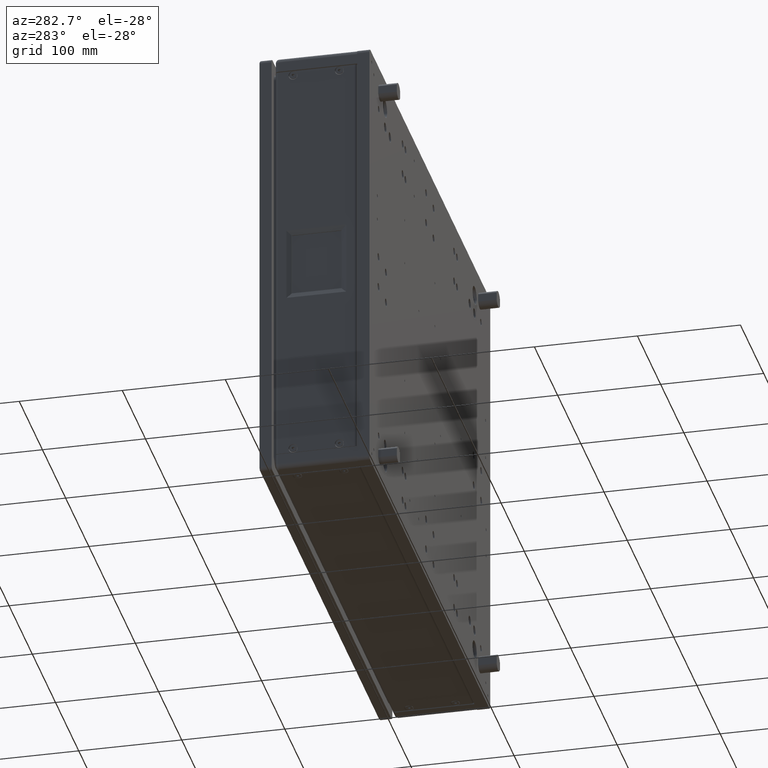
[diagram: clean part render]
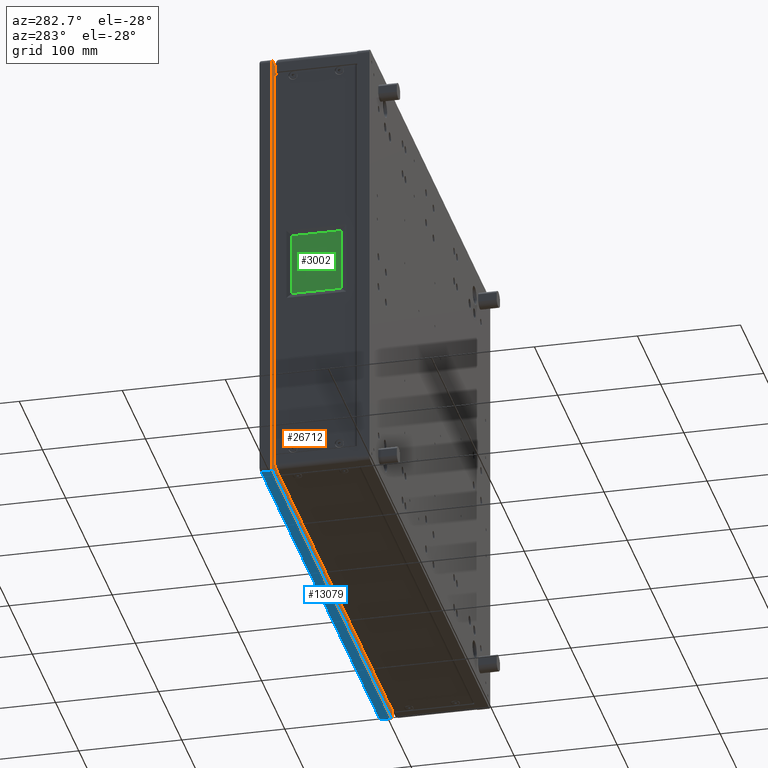
[diagram: same view with three faces highlighted in distinct colors, each labeled with its STEP entity id]
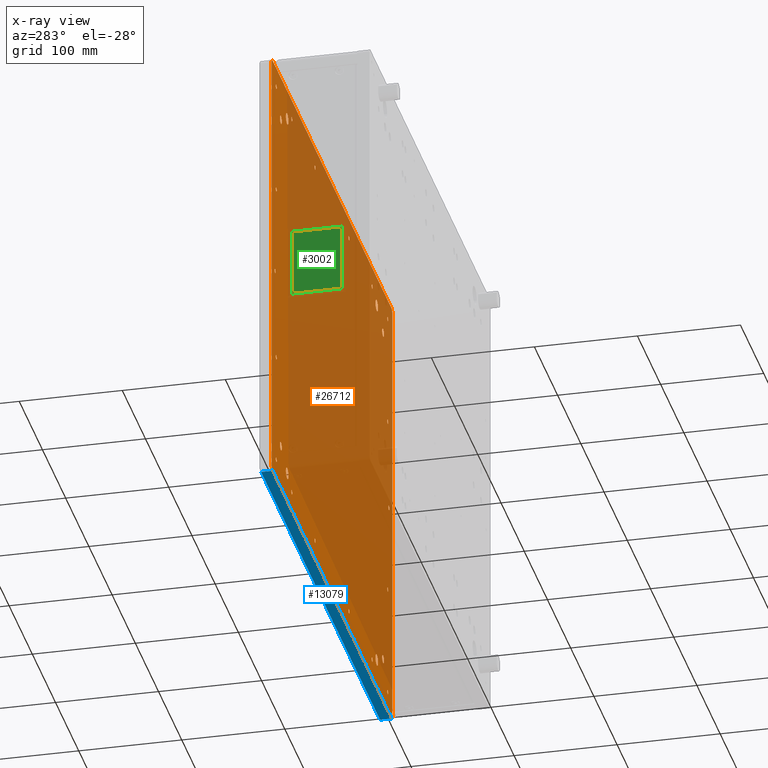
[diagram: x-ray of the same camera — body ghosted, the three highlighted faces saturated]
A machine part, auxiliary view with three faces highlighted in distinct colors.
The next image is the same camera in x-ray (body ghosted, the three faces saturated) — at least one of them is partly hidden behind the body in this view.
Their STEP definitions:

[orange] entity #26712 — the highlighted planar face has unit normal (0, -1, 0).
#168 = EDGE_LOOP ( 'NONE', ( #10743, #9901, #26916, #10120, #3523, #32896, #34332, #19754 ) ) ;
#341 = ORIENTED_EDGE ( 'NONE', *, *, #30311, .T. ) ;
#402 = EDGE_LOOP ( 'NONE', ( #28688 ) ) ;
#425 = CARTESIAN_POINT ( 'NONE',  ( -208.5487244020111177, 101.1371811005063108, 312.9000000000000341 ) ) ;
#665 = FACE_BOUND ( 'NONE', #37853, .T. ) ;
#764 = EDGE_LOOP ( 'NONE', ( #5874 ) ) ;
#797 = CARTESIAN_POINT ( 'NONE',  ( 204.4512755979889675, 101.1371811005064103, 602.8999999999999773 ) ) ;
#848 = FACE_BOUND ( 'NONE', #8120, .T. ) ;
#877 = EDGE_CURVE ( 'NONE', #38837, #31622, #29970, .T. ) ;
#979 = VERTEX_POINT ( 'NONE', #22086 ) ;
#1047 = FACE_BOUND ( 'NONE', #9235, .T. ) ;
#1106 = AXIS2_PLACEMENT_3D ( 'NONE', #12530, #37319, #10545 ) ;
#1227 = VERTEX_POINT ( 'NONE', #26251 ) ;
#1356 = AXIS2_PLACEMENT_3D ( 'NONE', #14320, #2036, #35163 ) ;
#1362 = CARTESIAN_POINT ( 'NONE',  ( 37.45127559798895334, 101.1371811005063819, 712.9000000000000909 ) ) ;
#1440 = VERTEX_POINT ( 'NONE', #11153 ) ;
#1709 = DIRECTION ( 'NONE',  ( -2.376672073132158167E-16, 1.000000000000000000, -8.030019939456232739E-17 ) ) ;
#1999 = CARTESIAN_POINT ( 'NONE',  ( 157.4512755979891665, 101.1371811005064103, 710.4999999999998863 ) ) ;
#2036 = DIRECTION ( 'NONE',  ( -2.376672073132158167E-16, 1.000000000000000000, -8.030019939456232739E-17 ) ) ;
#2159 = EDGE_CURVE ( 'NONE', #34348, #34348, #11267, .T. ) ;
#2203 = CIRCLE ( 'NONE', #26876, 2.099999999999990763 ) ;
#2260 = CARTESIAN_POINT ( 'NONE',  ( 224.4512755979889960, 101.1371811005064103, 493.3565087996968828 ) ) ;
#2636 = EDGE_LOOP ( 'NONE', ( #9509 ) ) ;
#2790 = DIRECTION ( 'NONE',  ( 0.000000000000000000, 0.000000000000000000, 1.000000000000000000 ) ) ;
#2815 = VERTEX_POINT ( 'NONE', #23256 ) ;
#2988 = VERTEX_POINT ( 'NONE', #6080 ) ;
#3041 = AXIS2_PLACEMENT_3D ( 'NONE', #9988, #33786, #27648 ) ;
#3456 = CARTESIAN_POINT ( 'NONE',  ( 184.4512755979888539, 101.1371811005063961, 339.9999999999999432 ) ) ;
#3523 = ORIENTED_EDGE ( 'NONE', *, *, #36328, .T. ) ;
#3822 = DIRECTION ( 'NONE',  ( 0.000000000000000000, 0.000000000000000000, -1.000000000000000000 ) ) ;
#3824 = FACE_BOUND ( 'NONE', #37181, .T. ) ;
#3891 = DIRECTION ( 'NONE',  ( 0.000000000000000000, 0.000000000000000000, -1.000000000000000000 ) ) ;
#4000 = EDGE_LOOP ( 'NONE', ( #18840 ) ) ;
#4064 = CARTESIAN_POINT ( 'NONE',  ( -228.5487244020109188, 101.1371811005063250, 710.5000000000000000 ) ) ;
#4172 = CARTESIAN_POINT ( 'NONE',  ( 204.4512755979889675, 101.1371811005063961, 312.8999999999999773 ) ) ;
#4390 = CARTESIAN_POINT ( 'NONE',  ( -291.5487244020110893, 101.1371811005062824, 294.9999999999999432 ) ) ;
#4622 = EDGE_CURVE ( 'NONE', #22012, #22012, #11488, .T. ) ;
#4698 = EDGE_CURVE ( 'NONE', #24418, #24418, #18450, .T. ) ;
#4911 = EDGE_LOOP ( 'NONE', ( #341 ) ) ;
#4934 = VERTEX_POINT ( 'NONE', #17588 ) ;
#4992 = PLANE ( 'NONE',  #14576 ) ;
#5503 = EDGE_CURVE ( 'NONE', #979, #26826, #34671, .T. ) ;
#5576 = CARTESIAN_POINT ( 'NONE',  ( -255.5487244020111461, 101.1371811005062966, 339.9999999999999432 ) ) ;
#5869 = DIRECTION ( 'NONE',  ( 0.000000000000000000, 0.000000000000000000, -1.000000000000000000 ) ) ;
#5874 = ORIENTED_EDGE ( 'NONE', *, *, #28479, .T. ) ;
#5956 = VERTEX_POINT ( 'NONE', #12664 ) ;
#6032 = DIRECTION ( 'NONE',  ( -2.376672073132158167E-16, 1.000000000000000000, -8.030019939456232739E-17 ) ) ;
#6071 = AXIS2_PLACEMENT_3D ( 'NONE', #29955, #22498, #2790 ) ;
#6080 = CARTESIAN_POINT ( 'NONE',  ( 224.4512755979889960, 101.1371811005064387, 731.0000000000000000 ) ) ;
#6360 = CARTESIAN_POINT ( 'NONE',  ( 209.4512755979889960, 101.1371811005064103, 514.9999999999998863 ) ) ;
#6363 = DIRECTION ( 'NONE',  ( 0.000000000000000000, 0.000000000000000000, 1.000000000000000000 ) ) ;
#6436 = LINE ( 'NONE', #12561, #29840 ) ;
#6810 = FACE_BOUND ( 'NONE', #10752, .T. ) ;
#6913 = CARTESIAN_POINT ( 'NONE',  ( -280.5487244020110893, 101.1371811005063108, 512.8999999999998636 ) ) ;
#6948 = EDGE_CURVE ( 'NONE', #23204, #23204, #35940, .T. ) ;
#7010 = FACE_BOUND ( 'NONE', #32013, .T. ) ;
#7125 = AXIS2_PLACEMENT_3D ( 'NONE', #18495, #36743, #9581 ) ;
#7196 = CARTESIAN_POINT ( 'NONE',  ( 184.4512755979888539, 101.1371811005063961, 335.9999999999999432 ) ) ;
#7246 = ORIENTED_EDGE ( 'NONE', *, *, #37244, .T. ) ;
#7317 = ORIENTED_EDGE ( 'NONE', *, *, #30348, .T. ) ;
#7643 = VERTEX_POINT ( 'NONE', #32689 ) ;
#7826 = ORIENTED_EDGE ( 'NONE', *, *, #39247, .T. ) ;
#7959 = CARTESIAN_POINT ( 'NONE',  ( 137.4512755979889675, 101.1371811005063819, 315.0000000000000000 ) ) ;
#8120 = EDGE_LOOP ( 'NONE', ( #19788 ) ) ;
#8216 = DIRECTION ( 'NONE',  ( 0.000000000000000000, 0.000000000000000000, 1.000000000000000000 ) ) ;
#8354 = VERTEX_POINT ( 'NONE', #1999 ) ;
#8402 = EDGE_CURVE ( 'NONE', #15805, #15805, #34574, .T. ) ;
#8510 = EDGE_LOOP ( 'NONE', ( #7246 ) ) ;
#8634 = AXIS2_PLACEMENT_3D ( 'NONE', #35340, #32548, #20076 ) ;
#8736 = DIRECTION ( 'NONE',  ( -2.376672073132158167E-16, 1.000000000000000000, -8.030019939456232739E-17 ) ) ;
#8789 = CARTESIAN_POINT ( 'NONE',  ( -228.5487244020109188, 101.1371811005063250, 705.0000000000000000 ) ) ;
#9062 = CARTESIAN_POINT ( 'NONE',  ( -108.5487244020110609, 101.1371811005063535, 712.9000000000000909 ) ) ;
#9073 = DIRECTION ( 'NONE',  ( -2.376672073132158167E-16, 1.000000000000000000, -8.030019939456232739E-17 ) ) ;
#9155 = CIRCLE ( 'NONE', #26259, 2.099999999999990763 ) ;
#9213 = DIRECTION ( 'NONE',  ( 0.000000000000000000, 0.000000000000000000, -1.000000000000000000 ) ) ;
#9235 = EDGE_LOOP ( 'NONE', ( #24928 ) ) ;
#9316 = ORIENTED_EDGE ( 'NONE', *, *, #14893, .T. ) ;
#9507 = DIRECTION ( 'NONE',  ( 0.000000000000000000, 0.000000000000000000, -1.000000000000000000 ) ) ;
#9509 = ORIENTED_EDGE ( 'NONE', *, *, #4622, .T. ) ;
#9581 = DIRECTION ( 'NONE',  ( 0.000000000000000000, 0.000000000000000000, -1.000000000000000000 ) ) ;
#9583 = DIRECTION ( 'NONE',  ( -2.376672073132158167E-16, 1.000000000000000000, -8.030019939456232739E-17 ) ) ;
#9776 = CIRCLE ( 'NONE', #32576, 2.099999999999990763 ) ;
#9826 = VERTEX_POINT ( 'NONE', #4064 ) ;
#9839 = ORIENTED_EDGE ( 'NONE', *, *, #13678, .T. ) ;
#9901 = ORIENTED_EDGE ( 'NONE', *, *, #877, .T. ) ;
#9944 = AXIS2_PLACEMENT_3D ( 'NONE', #5576, #20839, #35907 ) ;
#9988 = CARTESIAN_POINT ( 'NONE',  ( 220.4512755979889391, 101.1371811005064245, 731.0000000000000000 ) ) ;
#10005 = CIRCLE ( 'NONE', #3041, 4.000000000000003553 ) ;
#10092 = AXIS2_PLACEMENT_3D ( 'NONE', #12901, #31552, #15876 ) ;
#10120 = ORIENTED_EDGE ( 'NONE', *, *, #30762, .T. ) ;
#10139 = EDGE_CURVE ( 'NONE', #31886, #31886, #38192, .T. ) ;
#10545 = DIRECTION ( 'NONE',  ( 0.000000000000000000, 0.000000000000000000, -1.000000000000000000 ) ) ;
#10743 = ORIENTED_EDGE ( 'NONE', *, *, #21964, .T. ) ;
#10752 = EDGE_LOOP ( 'NONE', ( #9316 ) ) ;
#10919 = FACE_BOUND ( 'NONE', #31502, .T. ) ;
#11153 = CARTESIAN_POINT ( 'NONE',  ( -108.5487244020109898, 101.1371811005063250, 312.8999999999998636 ) ) ;
#11197 = LINE ( 'NONE', #23886, #20530 ) ;
#11246 = VERTEX_POINT ( 'NONE', #26322 ) ;
#11267 = CIRCLE ( 'NONE', #32177, 4.000000000000003553 ) ;
#11299 = AXIS2_PLACEMENT_3D ( 'NONE', #33515, #18242, #6363 ) ;
#11478 = EDGE_CURVE ( 'NONE', #11246, #11246, #2203, .T. ) ;
#11488 = CIRCLE ( 'NONE', #28580, 2.099999999999990763 ) ;
#11580 = EDGE_LOOP ( 'NONE', ( #13404 ) ) ;
#11649 = EDGE_CURVE ( 'NONE', #32466, #32466, #9776, .T. ) ;
#11844 = EDGE_LOOP ( 'NONE', ( #38994 ) ) ;
#12319 = CARTESIAN_POINT ( 'NONE',  ( -275.5487244020110325, 101.1371811005063108, 602.9000000000000909 ) ) ;
#12513 = VERTEX_POINT ( 'NONE', #12319 ) ;
#12530 = CARTESIAN_POINT ( 'NONE',  ( 37.45127559798891781, 101.1371811005063535, 314.9999999999998295 ) ) ;
#12561 = CARTESIAN_POINT ( 'NONE',  ( -65.92273067638429040, 101.1371811005063250, 294.9999999999999432 ) ) ;
#12576 = AXIS2_PLACEMENT_3D ( 'NONE', #29749, #19399, #9507 ) ;
#12586 = VECTOR ( 'NONE', #17325, 1000.000000000000000 ) ;
#12625 = DIRECTION ( 'NONE',  ( -2.376672073132158167E-16, 1.000000000000000000, -8.030019939456232739E-17 ) ) ;
#12664 = CARTESIAN_POINT ( 'NONE',  ( -275.5487244020110325, 101.1371811005062966, 312.8999999999999773 ) ) ;
#12746 = FACE_BOUND ( 'NONE', #4000, .T. ) ;
#12771 = ORIENTED_EDGE ( 'NONE', *, *, #6948, .T. ) ;
#12812 = DIRECTION ( 'NONE',  ( -2.376672073132158167E-16, 1.000000000000000000, -8.030019939456232739E-17 ) ) ;
#12824 = CARTESIAN_POINT ( 'NONE',  ( -208.5487244020110609, 101.1371811005063250, 715.0000000000000000 ) ) ;
#12890 = DIRECTION ( 'NONE',  ( -2.376672073132158167E-16, 1.000000000000000000, -8.030019939456232739E-17 ) ) ;
#12901 = CARTESIAN_POINT ( 'NONE',  ( 204.4512755979889675, 101.1371811005063961, 314.9999999999999432 ) ) ;
#12927 = DIRECTION ( 'NONE',  ( 0.000000000000000000, 0.000000000000000000, -1.000000000000000000 ) ) ;
#12937 = CARTESIAN_POINT ( 'NONE',  ( -65.92273067638427619, 101.1371811005063392, 493.3565087996969396 ) ) ;
#13019 = DIRECTION ( 'NONE',  ( 0.000000000000000000, 0.000000000000000000, -1.000000000000000000 ) ) ;
#13135 = FACE_BOUND ( 'NONE', #36828, .T. ) ;
#13337 = VERTEX_POINT ( 'NONE', #37537 ) ;
#13404 = ORIENTED_EDGE ( 'NONE', *, *, #31616, .T. ) ;
#13678 = EDGE_CURVE ( 'NONE', #1440, #1440, #9155, .T. ) ;
#13904 = FACE_BOUND ( 'NONE', #33571, .T. ) ;
#14101 = ORIENTED_EDGE ( 'NONE', *, *, #25055, .T. ) ;
#14320 = CARTESIAN_POINT ( 'NONE',  ( -208.5487244020111177, 101.1371811005063108, 315.0000000000000000 ) ) ;
#14434 = EDGE_LOOP ( 'NONE', ( #36014 ) ) ;
#14555 = DIRECTION ( 'NONE',  ( -1.066854937725736117E-16, -8.030019939456235204E-17, -1.000000000000000000 ) ) ;
#14571 = CARTESIAN_POINT ( 'NONE',  ( -108.5487244020109898, 101.1371811005063250, 314.9999999999998295 ) ) ;
#14576 = AXIS2_PLACEMENT_3D ( 'NONE', #12937, #17062, #29172 ) ;
#14621 = VERTEX_POINT ( 'NONE', #20009 ) ;
#14764 = EDGE_CURVE ( 'NONE', #13337, #13337, #18506, .T. ) ;
#14859 = EDGE_LOOP ( 'NONE', ( #28263 ) ) ;
#14893 = EDGE_CURVE ( 'NONE', #20872, #20872, #37524, .T. ) ;
#15335 = DIRECTION ( 'NONE',  ( 1.000000000000000000, 2.376672073132158167E-16, -1.066854937725736363E-16 ) ) ;
#15571 = CARTESIAN_POINT ( 'NONE',  ( -275.5487244020110325, 101.1371811005062966, 422.9000000000001478 ) ) ;
#15627 = CARTESIAN_POINT ( 'NONE',  ( 137.4512755979889107, 101.1371811005064103, 715.0000000000000000 ) ) ;
#15755 = CIRCLE ( 'NONE', #37967, 2.099999999999990763 ) ;
#15805 = VERTEX_POINT ( 'NONE', #33865 ) ;
#15876 = DIRECTION ( 'NONE',  ( 0.000000000000000000, 0.000000000000000000, -1.000000000000000000 ) ) ;
#15956 = CIRCLE ( 'NONE', #22971, 2.099999999999990763 ) ;
#16018 = ORIENTED_EDGE ( 'NONE', *, *, #10139, .T. ) ;
#16865 = FACE_BOUND ( 'NONE', #4911, .T. ) ;
#17062 = DIRECTION ( 'NONE',  ( 2.376672073132158167E-16, -1.000000000000000000, 8.030019939456232739E-17 ) ) ;
#17082 = CIRCLE ( 'NONE', #39254, 5.500000000000060396 ) ;
#17275 = AXIS2_PLACEMENT_3D ( 'NONE', #6360, #21609, #18438 ) ;
#17325 = DIRECTION ( 'NONE',  ( 1.066854937725736117E-16, 8.030019939456235204E-17, 1.000000000000000000 ) ) ;
#17455 = DIRECTION ( 'NONE',  ( 2.376672073132158167E-16, -1.000000000000000000, 8.030019939456232739E-17 ) ) ;
#17588 = CARTESIAN_POINT ( 'NONE',  ( -255.5487244020110893, 101.1371811005063250, 686.0000000000000000 ) ) ;
#17599 = VERTEX_POINT ( 'NONE', #29507 ) ;
#17652 = CARTESIAN_POINT ( 'NONE',  ( -291.5487244020110893, 101.1371811005063250, 731.0000000000000000 ) ) ;
#17889 = CIRCLE ( 'NONE', #34360, 2.099999999999990763 ) ;
#17927 = AXIS2_PLACEMENT_3D ( 'NONE', #24286, #27265, #9213 ) ;
#18164 = VERTEX_POINT ( 'NONE', #15571 ) ;
#18242 = DIRECTION ( 'NONE',  ( -2.376672073132158167E-16, 1.000000000000000000, -8.030019939456232739E-17 ) ) ;
#18438 = DIRECTION ( 'NONE',  ( 0.000000000000000000, 0.000000000000000000, -1.000000000000000000 ) ) ;
#18450 = CIRCLE ( 'NONE', #1356, 2.099999999999990763 ) ;
#18463 = ORIENTED_EDGE ( 'NONE', *, *, #11478, .T. ) ;
#18469 = CARTESIAN_POINT ( 'NONE',  ( 184.4512755979888539, 101.1371811005064245, 686.0000000000000000 ) ) ;
#18495 = CARTESIAN_POINT ( 'NONE',  ( -275.5487244020109756, 101.1371811005063250, 715.0000000000001137 ) ) ;
#18506 = CIRCLE ( 'NONE', #17275, 2.099999999999990763 ) ;
#18658 = DIRECTION ( 'NONE',  ( 0.000000000000000000, 0.000000000000000000, -1.000000000000000000 ) ) ;
#18663 = AXIS2_PLACEMENT_3D ( 'NONE', #27698, #12625, #34034 ) ;
#18670 = AXIS2_PLACEMENT_3D ( 'NONE', #22977, #32481, #25957 ) ;
#18774 = DIRECTION ( 'NONE',  ( -2.376672073132158167E-16, 1.000000000000000000, -8.030019939456232739E-17 ) ) ;
#18802 = VERTEX_POINT ( 'NONE', #6913 ) ;
#18840 = ORIENTED_EDGE ( 'NONE', *, *, #34485, .T. ) ;
#18898 = FACE_BOUND ( 'NONE', #14859, .T. ) ;
#19088 = FACE_BOUND ( 'NONE', #8510, .T. ) ;
#19399 = DIRECTION ( 'NONE',  ( 2.376672073132158167E-16, -1.000000000000000000, 8.030019939456232739E-17 ) ) ;
#19584 = CARTESIAN_POINT ( 'NONE',  ( 204.4512755979889675, 101.1371811005063961, 424.9999999999999432 ) ) ;
#19615 = CIRCLE ( 'NONE', #31006, 4.000000000000003553 ) ;
#19754 = ORIENTED_EDGE ( 'NONE', *, *, #31772, .T. ) ;
#19788 = ORIENTED_EDGE ( 'NONE', *, *, #37219, .T. ) ;
#19798 = CARTESIAN_POINT ( 'NONE',  ( -65.92273067638424777, 101.1371811005063677, 735.0000000000000000 ) ) ;
#19850 = FACE_BOUND ( 'NONE', #22796, .T. ) ;
#20004 = ORIENTED_EDGE ( 'NONE', *, *, #33193, .T. ) ;
#20009 = CARTESIAN_POINT ( 'NONE',  ( 204.4512755979889675, 101.1371811005063961, 422.8999999999999204 ) ) ;
#20076 = DIRECTION ( 'NONE',  ( 0.000000000000000000, 0.000000000000000000, -1.000000000000000000 ) ) ;
#20386 = DIRECTION ( 'NONE',  ( -1.000000000000000000, -2.376672073132158167E-16, 1.066854937725736363E-16 ) ) ;
#20491 = DIRECTION ( 'NONE',  ( -2.376672073132158167E-16, 1.000000000000000000, -8.030019939456232739E-17 ) ) ;
#20530 = VECTOR ( 'NONE', #14555, 1000.000000000000000 ) ;
#20579 = CIRCLE ( 'NONE', #18663, 2.099999999999990763 ) ;
#20608 = EDGE_CURVE ( 'NONE', #18802, #18802, #15956, .T. ) ;
#20839 = DIRECTION ( 'NONE',  ( -2.376672073132158167E-16, 1.000000000000000000, -8.030019939456232739E-17 ) ) ;
#20872 = VERTEX_POINT ( 'NONE', #29971 ) ;
#20875 = CIRCLE ( 'NONE', #30992, 2.099999999999990763 ) ;
#21408 = EDGE_LOOP ( 'NONE', ( #20004 ) ) ;
#21482 = CARTESIAN_POINT ( 'NONE',  ( -108.5487244020110609, 101.1371811005063535, 715.0000000000001137 ) ) ;
#21545 = VERTEX_POINT ( 'NONE', #29887 ) ;
#21609 = DIRECTION ( 'NONE',  ( -2.376672073132158167E-16, 1.000000000000000000, -8.030019939456232739E-17 ) ) ;
#21748 = CARTESIAN_POINT ( 'NONE',  ( -275.5487244020110325, 101.1371811005063108, 605.0000000000001137 ) ) ;
#21872 = FACE_BOUND ( 'NONE', #2636, .T. ) ;
#21964 = EDGE_CURVE ( 'NONE', #38181, #38837, #11197, .T. ) ;
#22012 = VERTEX_POINT ( 'NONE', #797 ) ;
#22045 = EDGE_LOOP ( 'NONE', ( #24656 ) ) ;
#22086 = CARTESIAN_POINT ( 'NONE',  ( 220.4512755979889391, 101.1371811005064245, 735.0000000000000000 ) ) ;
#22107 = CARTESIAN_POINT ( 'NONE',  ( -295.5487244020110893, 101.1371811005062824, 298.9999999999999432 ) ) ;
#22267 = DIRECTION ( 'NONE',  ( -2.376672073132158167E-16, 1.000000000000000000, -8.030019939456232739E-17 ) ) ;
#22421 = CARTESIAN_POINT ( 'NONE',  ( -255.5487244020110893, 101.1371811005063250, 690.0000000000000000 ) ) ;
#22498 = DIRECTION ( 'NONE',  ( -2.376672073132158167E-16, 1.000000000000000000, -8.030019939456232739E-17 ) ) ;
#22796 = EDGE_LOOP ( 'NONE', ( #35450 ) ) ;
#22971 = AXIS2_PLACEMENT_3D ( 'NONE', #38708, #23629, #37378 ) ;
#22977 = CARTESIAN_POINT ( 'NONE',  ( -275.5487244020110325, 101.1371811005062966, 425.0000000000001705 ) ) ;
#23022 = FACE_BOUND ( 'NONE', #11844, .T. ) ;
#23204 = VERTEX_POINT ( 'NONE', #29737 ) ;
#23210 = DIRECTION ( 'NONE',  ( 0.000000000000000000, 0.000000000000000000, -1.000000000000000000 ) ) ;
#23256 = CARTESIAN_POINT ( 'NONE',  ( -255.5487244020111461, 101.1371811005062966, 335.9999999999999432 ) ) ;
#23258 = EDGE_CURVE ( 'NONE', #4934, #4934, #38389, .T. ) ;
#23413 = CARTESIAN_POINT ( 'NONE',  ( -291.5487244020110893, 101.1371811005063250, 735.0000000000000000 ) ) ;
#23540 = EDGE_LOOP ( 'NONE', ( #9839 ) ) ;
#23629 = DIRECTION ( 'NONE',  ( -2.376672073132158167E-16, 1.000000000000000000, -8.030019939456232739E-17 ) ) ;
#23886 = CARTESIAN_POINT ( 'NONE',  ( -295.5487244020110893, 101.1371811005062966, 493.3565087996969396 ) ) ;
#23995 = DIRECTION ( 'NONE',  ( -2.376672073132158167E-16, 1.000000000000000000, -8.030019939456232739E-17 ) ) ;
#24065 = ORIENTED_EDGE ( 'NONE', *, *, #35537, .T. ) ;
#24286 = CARTESIAN_POINT ( 'NONE',  ( -291.5487244020110893, 101.1371811005062824, 298.9999999999999432 ) ) ;
#24418 = VERTEX_POINT ( 'NONE', #425 ) ;
#24656 = ORIENTED_EDGE ( 'NONE', *, *, #8402, .T. ) ;
#24845 = FACE_BOUND ( 'NONE', #764, .T. ) ;
#24928 = ORIENTED_EDGE ( 'NONE', *, *, #11649, .T. ) ;
#24992 = ORIENTED_EDGE ( 'NONE', *, *, #20608, .T. ) ;
#25055 = EDGE_CURVE ( 'NONE', #18164, #18164, #30074, .T. ) ;
#25242 = FACE_BOUND ( 'NONE', #14434, .T. ) ;
#25292 = CIRCLE ( 'NONE', #10092, 2.099999999999990763 ) ;
#25355 = VERTEX_POINT ( 'NONE', #1362 ) ;
#25626 = CARTESIAN_POINT ( 'NONE',  ( -295.5487244020110893, 101.1371811005063250, 731.0000000000000000 ) ) ;
#25726 = DIRECTION ( 'NONE',  ( -2.376672073132158167E-16, 1.000000000000000000, -8.030019939456232739E-17 ) ) ;
#25787 = CIRCLE ( 'NONE', #9944, 4.000000000000003553 ) ;
#25882 = CIRCLE ( 'NONE', #11299, 5.500000000000060396 ) ;
#25957 = DIRECTION ( 'NONE',  ( 0.000000000000000000, 0.000000000000000000, -1.000000000000000000 ) ) ;
#26001 = FACE_BOUND ( 'NONE', #23540, .T. ) ;
#26232 = EDGE_CURVE ( 'NONE', #9826, #9826, #17082, .T. ) ;
#26251 = CARTESIAN_POINT ( 'NONE',  ( 220.4512755979889960, 101.1371811005063961, 294.9999999999999432 ) ) ;
#26259 = AXIS2_PLACEMENT_3D ( 'NONE', #14571, #1709, #38392 ) ;
#26322 = CARTESIAN_POINT ( 'NONE',  ( 137.4512755979889675, 101.1371811005063819, 312.9000000000000341 ) ) ;
#26569 = ORIENTED_EDGE ( 'NONE', *, *, #4698, .T. ) ;
#26712 = ADVANCED_FACE ( 'NONE', ( #19850, #28201, #13904, #31946, #26001, #7010, #848, #38102, #665, #1047, #16865, #10919, #13135, #19088, #25242, #21872, #37141, #30998, #37905, #12746, #23022, #18898, #3824, #24845, #33965, #32149, #6810 ), #4992, .T. ) ;
#26826 = VERTEX_POINT ( 'NONE', #23413 ) ;
#26876 = AXIS2_PLACEMENT_3D ( 'NONE', #7959, #8736, #23210 ) ;
#26916 = ORIENTED_EDGE ( 'NONE', *, *, #27696, .T. ) ;
#27112 = VERTEX_POINT ( 'NONE', #9062 ) ;
#27207 = VERTEX_POINT ( 'NONE', #18469 ) ;
#27265 = DIRECTION ( 'NONE',  ( 2.376672073132158167E-16, -1.000000000000000000, 8.030019939456232739E-17 ) ) ;
#27500 = EDGE_LOOP ( 'NONE', ( #12771 ) ) ;
#27617 = CIRCLE ( 'NONE', #8634, 2.099999999999990763 ) ;
#27648 = DIRECTION ( 'NONE',  ( 0.000000000000000000, 0.000000000000000000, -1.000000000000000000 ) ) ;
#27696 = EDGE_CURVE ( 'NONE', #31622, #1227, #6436, .T. ) ;
#27698 = CARTESIAN_POINT ( 'NONE',  ( -275.5487244020110325, 101.1371811005062966, 314.9999999999999432 ) ) ;
#27858 = VECTOR ( 'NONE', #20386, 1000.000000000000000 ) ;
#28201 = FACE_OUTER_BOUND ( 'NONE', #168, .T. ) ;
#28263 = ORIENTED_EDGE ( 'NONE', *, *, #23258, .T. ) ;
#28479 = EDGE_CURVE ( 'NONE', #2815, #2815, #25787, .T. ) ;
#28580 = AXIS2_PLACEMENT_3D ( 'NONE', #37138, #22267, #3822 ) ;
#28688 = ORIENTED_EDGE ( 'NONE', *, *, #39105, .T. ) ;
#28909 = CARTESIAN_POINT ( 'NONE',  ( -275.5487244020109756, 101.1371811005063250, 712.9000000000000909 ) ) ;
#29172 = DIRECTION ( 'NONE',  ( -1.066854937725736117E-16, -8.030019939456235204E-17, -1.000000000000000000 ) ) ;
#29318 = AXIS2_PLACEMENT_3D ( 'NONE', #21482, #9583, #12927 ) ;
#29493 = CARTESIAN_POINT ( 'NONE',  ( 137.4512755979889107, 101.1371811005064103, 712.8999999999999773 ) ) ;
#29507 = CARTESIAN_POINT ( 'NONE',  ( -208.5487244020110609, 101.1371811005063250, 712.8999999999999773 ) ) ;
#29560 = DIRECTION ( 'NONE',  ( 0.000000000000000000, 0.000000000000000000, -1.000000000000000000 ) ) ;
#29737 = CARTESIAN_POINT ( 'NONE',  ( 37.45127559798891781, 101.1371811005063535, 312.8999999999998636 ) ) ;
#29749 = CARTESIAN_POINT ( 'NONE',  ( 220.4512755979889960, 101.1371811005063961, 298.9999999999999432 ) ) ;
#29817 = LINE ( 'NONE', #2260, #12586 ) ;
#29840 = VECTOR ( 'NONE', #15335, 1000.000000000000000 ) ;
#29856 = DIRECTION ( 'NONE',  ( -2.376672073132158167E-16, 1.000000000000000000, -8.030019939456232739E-17 ) ) ;
#29887 = CARTESIAN_POINT ( 'NONE',  ( 204.4512755979889675, 101.1371811005064245, 712.8999999999999773 ) ) ;
#29955 = CARTESIAN_POINT ( 'NONE',  ( 157.4512755979890528, 101.1371811005063819, 324.9999999999998295 ) ) ;
#29970 = CIRCLE ( 'NONE', #17927, 4.000000000000003553 ) ;
#29971 = CARTESIAN_POINT ( 'NONE',  ( -228.5487244020110040, 101.1371811005063108, 330.4999999999999432 ) ) ;
#30074 = CIRCLE ( 'NONE', #18670, 2.099999999999990763 ) ;
#30311 = EDGE_CURVE ( 'NONE', #12513, #12513, #15755, .T. ) ;
#30348 = EDGE_CURVE ( 'NONE', #27207, #27207, #32102, .T. ) ;
#30571 = CIRCLE ( 'NONE', #29318, 2.099999999999990763 ) ;
#30762 = EDGE_CURVE ( 'NONE', #1227, #7643, #38557, .T. ) ;
#30992 = AXIS2_PLACEMENT_3D ( 'NONE', #19584, #25726, #37835 ) ;
#30998 = FACE_BOUND ( 'NONE', #39132, .T. ) ;
#31006 = AXIS2_PLACEMENT_3D ( 'NONE', #17652, #17455, #29560 ) ;
#31256 = CARTESIAN_POINT ( 'NONE',  ( 184.4512755979888539, 101.1371811005064245, 690.0000000000000000 ) ) ;
#31449 = DIRECTION ( 'NONE',  ( 0.000000000000000000, 0.000000000000000000, -1.000000000000000000 ) ) ;
#31502 = EDGE_LOOP ( 'NONE', ( #24992 ) ) ;
#31552 = DIRECTION ( 'NONE',  ( -2.376672073132158167E-16, 1.000000000000000000, -8.030019939456232739E-17 ) ) ;
#31616 = EDGE_CURVE ( 'NONE', #34318, #34318, #25292, .T. ) ;
#31622 = VERTEX_POINT ( 'NONE', #4390 ) ;
#31772 = EDGE_CURVE ( 'NONE', #26826, #38181, #19615, .T. ) ;
#31886 = VERTEX_POINT ( 'NONE', #28909 ) ;
#31946 = FACE_BOUND ( 'NONE', #27500, .T. ) ;
#32013 = EDGE_LOOP ( 'NONE', ( #26569 ) ) ;
#32102 = CIRCLE ( 'NONE', #32715, 4.000000000000003553 ) ;
#32149 = FACE_BOUND ( 'NONE', #22045, .T. ) ;
#32177 = AXIS2_PLACEMENT_3D ( 'NONE', #3456, #29856, #5869 ) ;
#32419 = CARTESIAN_POINT ( 'NONE',  ( 204.4512755979889675, 101.1371811005064245, 715.0000000000000000 ) ) ;
#32466 = VERTEX_POINT ( 'NONE', #29493 ) ;
#32481 = DIRECTION ( 'NONE',  ( -2.376672073132158167E-16, 1.000000000000000000, -8.030019939456232739E-17 ) ) ;
#32548 = DIRECTION ( 'NONE',  ( -2.376672073132158167E-16, 1.000000000000000000, -8.030019939456232739E-17 ) ) ;
#32576 = AXIS2_PLACEMENT_3D ( 'NONE', #15627, #23995, #36665 ) ;
#32663 = AXIS2_PLACEMENT_3D ( 'NONE', #22421, #12890, #18658 ) ;
#32669 = EDGE_LOOP ( 'NONE', ( #7826 ) ) ;
#32689 = CARTESIAN_POINT ( 'NONE',  ( 224.4512755979889960, 101.1371811005063961, 298.9999999999999432 ) ) ;
#32715 = AXIS2_PLACEMENT_3D ( 'NONE', #31256, #12812, #3891 ) ;
#32896 = ORIENTED_EDGE ( 'NONE', *, *, #32972, .T. ) ;
#32972 = EDGE_CURVE ( 'NONE', #2988, #979, #10005, .T. ) ;
#33193 = EDGE_CURVE ( 'NONE', #8354, #8354, #25882, .T. ) ;
#33515 = CARTESIAN_POINT ( 'NONE',  ( 157.4512755979891665, 101.1371811005064103, 704.9999999999998863 ) ) ;
#33571 = EDGE_LOOP ( 'NONE', ( #18463 ) ) ;
#33717 = AXIS2_PLACEMENT_3D ( 'NONE', #38643, #9073, #35479 ) ;
#33786 = DIRECTION ( 'NONE',  ( 2.376672073132158167E-16, -1.000000000000000000, 8.030019939456232739E-17 ) ) ;
#33865 = CARTESIAN_POINT ( 'NONE',  ( 157.4512755979890528, 101.1371811005063819, 330.4999999999998295 ) ) ;
#33965 = FACE_BOUND ( 'NONE', #21408, .T. ) ;
#34034 = DIRECTION ( 'NONE',  ( 0.000000000000000000, 0.000000000000000000, -1.000000000000000000 ) ) ;
#34318 = VERTEX_POINT ( 'NONE', #4172 ) ;
#34332 = ORIENTED_EDGE ( 'NONE', *, *, #5503, .T. ) ;
#34348 = VERTEX_POINT ( 'NONE', #7196 ) ;
#34360 = AXIS2_PLACEMENT_3D ( 'NONE', #32419, #6032, #38559 ) ;
#34485 = EDGE_CURVE ( 'NONE', #5956, #5956, #20579, .T. ) ;
#34574 = CIRCLE ( 'NONE', #6071, 5.500000000000005329 ) ;
#34658 = DIRECTION ( 'NONE',  ( -2.376672073132158167E-16, 1.000000000000000000, -8.030019939456232739E-17 ) ) ;
#34671 = LINE ( 'NONE', #19798, #27858 ) ;
#35163 = DIRECTION ( 'NONE',  ( 0.000000000000000000, 0.000000000000000000, -1.000000000000000000 ) ) ;
#35340 = CARTESIAN_POINT ( 'NONE',  ( 37.45127559798895334, 101.1371811005063819, 715.0000000000001137 ) ) ;
#35450 = ORIENTED_EDGE ( 'NONE', *, *, #26232, .T. ) ;
#35479 = DIRECTION ( 'NONE',  ( 0.000000000000000000, 0.000000000000000000, 1.000000000000000000 ) ) ;
#35537 = EDGE_CURVE ( 'NONE', #25355, #25355, #27617, .T. ) ;
#35907 = DIRECTION ( 'NONE',  ( 0.000000000000000000, 0.000000000000000000, -1.000000000000000000 ) ) ;
#35940 = CIRCLE ( 'NONE', #1106, 2.099999999999990763 ) ;
#36014 = ORIENTED_EDGE ( 'NONE', *, *, #14764, .T. ) ;
#36079 = CIRCLE ( 'NONE', #37339, 2.099999999999990763 ) ;
#36328 = EDGE_CURVE ( 'NONE', #7643, #2988, #29817, .T. ) ;
#36665 = DIRECTION ( 'NONE',  ( 0.000000000000000000, 0.000000000000000000, -1.000000000000000000 ) ) ;
#36743 = DIRECTION ( 'NONE',  ( -2.376672073132158167E-16, 1.000000000000000000, -8.030019939456232739E-17 ) ) ;
#36828 = EDGE_LOOP ( 'NONE', ( #14101 ) ) ;
#37138 = CARTESIAN_POINT ( 'NONE',  ( 204.4512755979889675, 101.1371811005064103, 605.0000000000000000 ) ) ;
#37141 = FACE_BOUND ( 'NONE', #402, .T. ) ;
#37181 = EDGE_LOOP ( 'NONE', ( #7317 ) ) ;
#37219 = EDGE_CURVE ( 'NONE', #17599, #17599, #36079, .T. ) ;
#37244 = EDGE_CURVE ( 'NONE', #14621, #14621, #20875, .T. ) ;
#37319 = DIRECTION ( 'NONE',  ( -2.376672073132158167E-16, 1.000000000000000000, -8.030019939456232739E-17 ) ) ;
#37339 = AXIS2_PLACEMENT_3D ( 'NONE', #12824, #34658, #13019 ) ;
#37378 = DIRECTION ( 'NONE',  ( 0.000000000000000000, 0.000000000000000000, -1.000000000000000000 ) ) ;
#37524 = CIRCLE ( 'NONE', #33717, 5.500000000000005329 ) ;
#37537 = CARTESIAN_POINT ( 'NONE',  ( 209.4512755979889960, 101.1371811005064103, 512.8999999999998636 ) ) ;
#37835 = DIRECTION ( 'NONE',  ( 0.000000000000000000, 0.000000000000000000, -1.000000000000000000 ) ) ;
#37853 = EDGE_LOOP ( 'NONE', ( #24065 ) ) ;
#37905 = FACE_BOUND ( 'NONE', #11580, .T. ) ;
#37967 = AXIS2_PLACEMENT_3D ( 'NONE', #21748, #18774, #31449 ) ;
#38102 = FACE_BOUND ( 'NONE', #32669, .T. ) ;
#38181 = VERTEX_POINT ( 'NONE', #25626 ) ;
#38192 = CIRCLE ( 'NONE', #7125, 2.099999999999990763 ) ;
#38389 = CIRCLE ( 'NONE', #32663, 4.000000000000003553 ) ;
#38392 = DIRECTION ( 'NONE',  ( 0.000000000000000000, 0.000000000000000000, -1.000000000000000000 ) ) ;
#38557 = CIRCLE ( 'NONE', #12576, 4.000000000000003553 ) ;
#38559 = DIRECTION ( 'NONE',  ( 0.000000000000000000, 0.000000000000000000, -1.000000000000000000 ) ) ;
#38643 = CARTESIAN_POINT ( 'NONE',  ( -228.5487244020110040, 101.1371811005063108, 324.9999999999999432 ) ) ;
#38708 = CARTESIAN_POINT ( 'NONE',  ( -280.5487244020110893, 101.1371811005063108, 514.9999999999998863 ) ) ;
#38837 = VERTEX_POINT ( 'NONE', #22107 ) ;
#38994 = ORIENTED_EDGE ( 'NONE', *, *, #2159, .T. ) ;
#39105 = EDGE_CURVE ( 'NONE', #21545, #21545, #17889, .T. ) ;
#39132 = EDGE_LOOP ( 'NONE', ( #16018 ) ) ;
#39247 = EDGE_CURVE ( 'NONE', #27112, #27112, #30571, .T. ) ;
#39254 = AXIS2_PLACEMENT_3D ( 'NONE', #8789, #20491, #8216 ) ;

[blue] entity #13079 — the highlighted planar face has unit normal (-0, -0, -1).
#1227 = VERTEX_POINT ( 'NONE', #26251 ) ;
#1657 = DIRECTION ( 'NONE',  ( -2.376672073132158167E-16, 1.000000000000000000, -8.030019939456232739E-17 ) ) ;
#3236 = DIRECTION ( 'NONE',  ( 2.376672073132158167E-16, -1.000000000000000000, 8.030019939456232739E-17 ) ) ;
#4335 = ORIENTED_EDGE ( 'NONE', *, *, #30387, .T. ) ;
#4390 = CARTESIAN_POINT ( 'NONE',  ( -291.5487244020110893, 101.1371811005062824, 294.9999999999999432 ) ) ;
#4432 = EDGE_CURVE ( 'NONE', #36620, #31622, #6430, .T. ) ;
#6430 = LINE ( 'NONE', #9001, #24762 ) ;
#6436 = LINE ( 'NONE', #12561, #29840 ) ;
#9001 = CARTESIAN_POINT ( 'NONE',  ( -291.5487244020110893, 113.1371811005062682, 294.9999999999999432 ) ) ;
#10275 = ORIENTED_EDGE ( 'NONE', *, *, #27696, .F. ) ;
#10351 = EDGE_LOOP ( 'NONE', ( #31867, #10275, #23417, #4335 ) ) ;
#12561 = CARTESIAN_POINT ( 'NONE',  ( -65.92273067638429040, 101.1371811005063250, 294.9999999999999432 ) ) ;
#13079 = ADVANCED_FACE ( 'NONE', ( #24811 ), #22237, .T. ) ;
#14331 = VECTOR ( 'NONE', #15869, 1000.000000000000000 ) ;
#15335 = DIRECTION ( 'NONE',  ( 1.000000000000000000, 2.376672073132158167E-16, -1.066854937725736363E-16 ) ) ;
#15869 = DIRECTION ( 'NONE',  ( 1.000000000000000000, 2.376672073132158167E-16, -1.066854937725736363E-16 ) ) ;
#16581 = CARTESIAN_POINT ( 'NONE',  ( 220.4512755979889960, 112.1371811005218575, 295.0000000000156888 ) ) ;
#16717 = LINE ( 'NONE', #25852, #22090 ) ;
#19244 = CARTESIAN_POINT ( 'NONE',  ( -295.5487244020110893, 112.1371811005062682, 295.0000000000000000 ) ) ;
#19246 = DIRECTION ( 'NONE',  ( 1.000000000000000000, 2.376672073132158167E-16, -1.066854937725736363E-16 ) ) ;
#19447 = LINE ( 'NONE', #19244, #14331 ) ;
#20134 = VERTEX_POINT ( 'NONE', #16581 ) ;
#22090 = VECTOR ( 'NONE', #1657, 1000.000000000000000 ) ;
#22237 = PLANE ( 'NONE',  #29374 ) ;
#23417 = ORIENTED_EDGE ( 'NONE', *, *, #4432, .F. ) ;
#24762 = VECTOR ( 'NONE', #3236, 1000.000000000000000 ) ;
#24811 = FACE_OUTER_BOUND ( 'NONE', #10351, .T. ) ;
#25852 = CARTESIAN_POINT ( 'NONE',  ( 220.4512755979889960, 113.1371811005063961, 294.9999999999999432 ) ) ;
#26251 = CARTESIAN_POINT ( 'NONE',  ( 220.4512755979889960, 101.1371811005063961, 294.9999999999999432 ) ) ;
#27696 = EDGE_CURVE ( 'NONE', #31622, #1227, #6436, .T. ) ;
#29374 = AXIS2_PLACEMENT_3D ( 'NONE', #34321, #33928, #19246 ) ;
#29840 = VECTOR ( 'NONE', #15335, 1000.000000000000000 ) ;
#30387 = EDGE_CURVE ( 'NONE', #36620, #20134, #19447, .T. ) ;
#31169 = EDGE_CURVE ( 'NONE', #1227, #20134, #16717, .T. ) ;
#31622 = VERTEX_POINT ( 'NONE', #4390 ) ;
#31867 = ORIENTED_EDGE ( 'NONE', *, *, #31169, .F. ) ;
#33928 = DIRECTION ( 'NONE',  ( -1.066854937725736117E-16, -8.030019939456235204E-17, -1.000000000000000000 ) ) ;
#34321 = CARTESIAN_POINT ( 'NONE',  ( -295.5487244020110893, 113.1371811005062682, 295.0000000000000000 ) ) ;
#36620 = VERTEX_POINT ( 'NONE', #36696 ) ;
#36696 = CARTESIAN_POINT ( 'NONE',  ( -291.5487244020110893, 112.1371811005217438, 295.0000000000156888 ) ) ;

[green] entity #3002 — the highlighted planar face has unit normal (-1, -0, 0).
#1778 = CARTESIAN_POINT ( 'NONE',  ( -292.8487244020119533, 33.88718110050651688, 482.0999999999991132 ) ) ;
#3002 = ADVANCED_FACE ( 'NONE', ( #9435 ), #12194, .T. ) ;
#3603 = DIRECTION ( 'NONE',  ( -8.459980785602901855E-17, 1.000000000000000000, -9.283945777894853765E-16 ) ) ;
#5166 = LINE ( 'NONE', #1778, #19424 ) ;
#5449 = EDGE_CURVE ( 'NONE', #35725, #33692, #12839, .T. ) ;
#6552 = CARTESIAN_POINT ( 'NONE',  ( -292.8487244020119533, 33.88718110050651688, 482.0999999999991132 ) ) ;
#6843 = EDGE_CURVE ( 'NONE', #33692, #11176, #36732, .T. ) ;
#7308 = DIRECTION ( 'NONE',  ( 4.718447854656914311E-16, 8.889690442445579066E-16, 1.000000000000000000 ) ) ;
#9435 = FACE_OUTER_BOUND ( 'NONE', #28469, .T. ) ;
#10745 = ORIENTED_EDGE ( 'NONE', *, *, #19699, .T. ) ;
#11176 = VERTEX_POINT ( 'NONE', #29260 ) ;
#12194 = PLANE ( 'NONE',  #26727 ) ;
#12839 = LINE ( 'NONE', #34467, #20303 ) ;
#13175 = DIRECTION ( 'NONE',  ( -4.718447854656914311E-16, -7.838342881247512876E-16, -1.000000000000000000 ) ) ;
#14246 = VECTOR ( 'NONE', #13175, 1000.000000000000000 ) ;
#15182 = DIRECTION ( 'NONE',  ( -1.000000000000000000, -8.459980785602857482E-17, 4.718447854656915297E-16 ) ) ;
#16721 = ORIENTED_EDGE ( 'NONE', *, *, #17966, .T. ) ;
#17966 = EDGE_CURVE ( 'NONE', #11176, #23427, #25282, .T. ) ;
#18092 = CARTESIAN_POINT ( 'NONE',  ( -292.8487244020119533, 33.88718110050658083, 548.0999999999991132 ) ) ;
#19424 = VECTOR ( 'NONE', #19631, 1000.000000000000000 ) ;
#19631 = DIRECTION ( 'NONE',  ( 8.459980785602901855E-17, -1.000000000000000000, 9.283945777894853765E-16 ) ) ;
#19699 = EDGE_CURVE ( 'NONE', #23427, #35725, #5166, .T. ) ;
#20303 = VECTOR ( 'NONE', #7308, 1000.000000000000000 ) ;
#20956 = CARTESIAN_POINT ( 'NONE',  ( -292.8487244020119533, 57.88718110050654531, 515.9999999999990905 ) ) ;
#23427 = VERTEX_POINT ( 'NONE', #35316 ) ;
#24695 = DIRECTION ( 'NONE',  ( 4.718447854656914311E-16, 7.838342881247512876E-16, 1.000000000000000000 ) ) ;
#25282 = LINE ( 'NONE', #33623, #14246 ) ;
#26727 = AXIS2_PLACEMENT_3D ( 'NONE', #20956, #15182, #24695 ) ;
#27321 = CARTESIAN_POINT ( 'NONE',  ( -292.8487244020119533, 33.88718110050657373, 548.0999999999991132 ) ) ;
#27707 = ORIENTED_EDGE ( 'NONE', *, *, #6843, .T. ) ;
#28469 = EDGE_LOOP ( 'NONE', ( #10745, #32788, #27707, #16721 ) ) ;
#29260 = CARTESIAN_POINT ( 'NONE',  ( -292.8487244020119533, 81.88718110050656662, 548.0999999999991132 ) ) ;
#32788 = ORIENTED_EDGE ( 'NONE', *, *, #5449, .T. ) ;
#33623 = CARTESIAN_POINT ( 'NONE',  ( -292.8487244020119533, 81.88718110050656662, 548.0999999999991132 ) ) ;
#33692 = VERTEX_POINT ( 'NONE', #27321 ) ;
#34467 = CARTESIAN_POINT ( 'NONE',  ( -292.8487244020119533, 33.88718110050658083, 548.0999999999991132 ) ) ;
#34760 = VECTOR ( 'NONE', #3603, 1000.000000000000000 ) ;
#35316 = CARTESIAN_POINT ( 'NONE',  ( -292.8487244020119533, 81.88718110050652399, 482.0999999999991132 ) ) ;
#35725 = VERTEX_POINT ( 'NONE', #6552 ) ;
#36732 = LINE ( 'NONE', #18092, #34760 ) ;